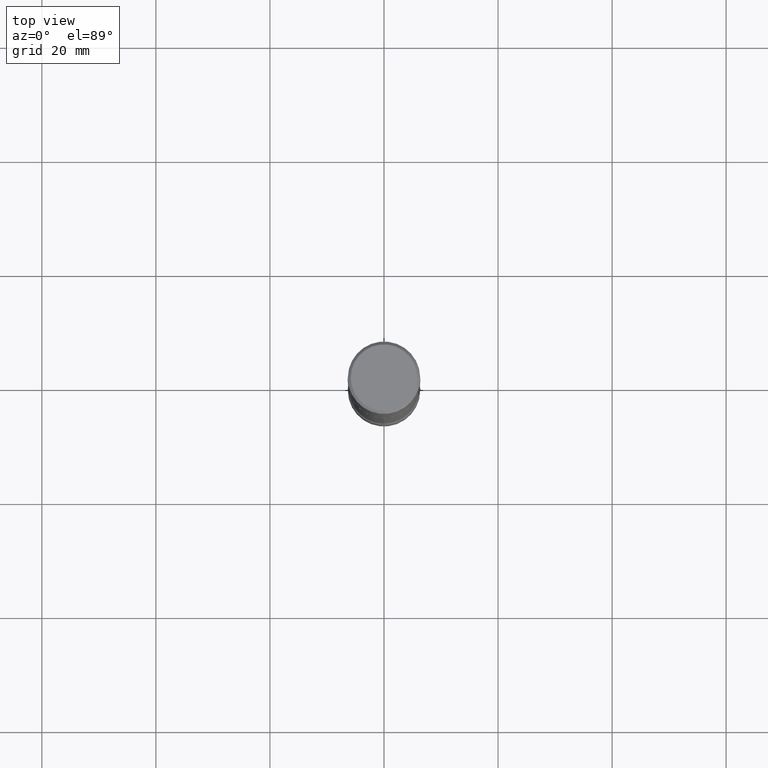
[diagram: clean part render]
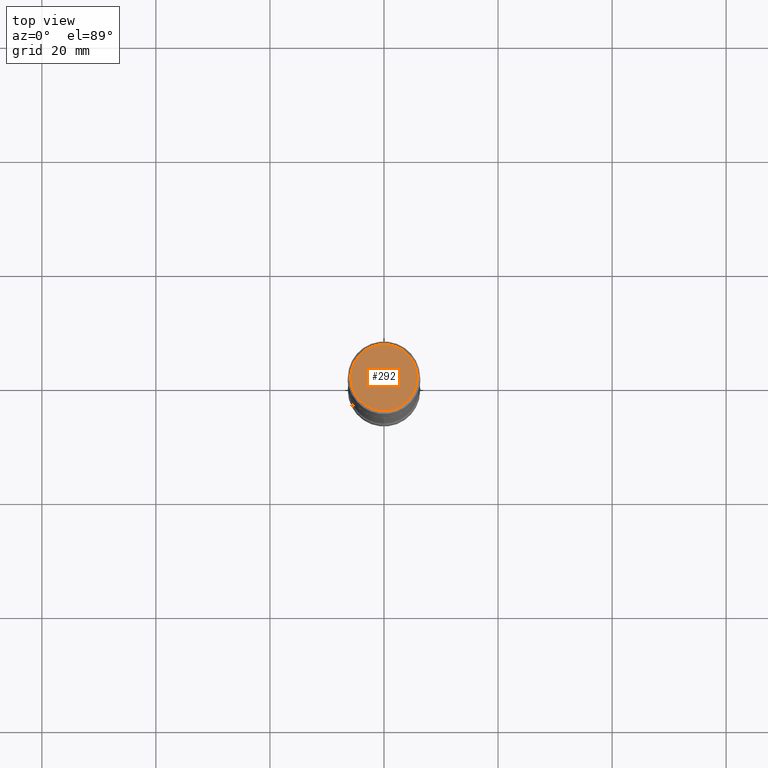
[diagram: same view with one face highlighted and labeled with its STEP entity id]
A machine part, top view. The second image highlights one B-rep face of the part: STEP entity #292.
In plain terms, the highlighted planar face has unit normal (0, -0, -1).
Its self-contained STEP definition (entity closure, byte-faithful):
#27 = DIRECTION ( 'NONE',  ( -2.445468806185136597E-29, 3.491481338843145583E-15, 1.000000000000000000 ) ) ;
#31 = AXIS2_PLACEMENT_3D ( 'NONE', #224, #403, #176 ) ;
#40 = CIRCLE ( 'NONE', #31, 0.2300000000000001210 ) ;
#57 = DIRECTION ( 'NONE',  ( 2.438088387897960049E-29, -3.491481338843145188E-15, -1.000000000000000000 ) ) ;
#85 = EDGE_CURVE ( 'NONE', #234, #133, #40, .T. ) ;
#133 = VERTEX_POINT ( 'NONE', #260 ) ;
#138 = AXIS2_PLACEMENT_3D ( 'NONE', #270, #27, #182 ) ;
#176 = DIRECTION ( 'NONE',  ( 1.000000000000000000, -6.982962677686265922E-15, 4.876225828469306079E-29 ) ) ;
#180 = EDGE_CURVE ( 'NONE', #133, #234, #431, .T. ) ;
#182 = DIRECTION ( 'NONE',  ( 1.000000000000000000, -6.982962677686265922E-15, 4.876225828469306079E-29 ) ) ;
#185 = ORIENTED_EDGE ( 'NONE', *, *, #85, .T. ) ;
#224 = CARTESIAN_POINT ( 'NONE',  ( -1.043851414335219820E-46, 1.490343170380447200E-32, 4.268512490100411279E-18 ) ) ;
#234 = VERTEX_POINT ( 'NONE', #333 ) ;
#240 = AXIS2_PLACEMENT_3D ( 'NONE', #440, #57, #443 ) ;
#260 = CARTESIAN_POINT ( 'NONE',  ( 0.2300000000000001210, -1.681434332853599997E-15, 4.268512490111905999E-18 ) ) ;
#263 = FACE_OUTER_BOUND ( 'NONE', #487, .T. ) ;
#270 = CARTESIAN_POINT ( 'NONE',  ( -1.043851414335219820E-46, 1.490343170380447200E-32, 4.268512490100411279E-18 ) ) ;
#292 = ADVANCED_FACE ( 'NONE', ( #263 ), #496, .F. ) ;
#319 = ORIENTED_EDGE ( 'NONE', *, *, #180, .T. ) ;
#333 = CARTESIAN_POINT ( 'NONE',  ( -0.2300000000000001210, 1.640996229256273111E-15, 4.268512490089056766E-18 ) ) ;
#403 = DIRECTION ( 'NONE',  ( -2.445468806185136597E-29, 3.491481338843145583E-15, 1.000000000000000000 ) ) ;
#431 = CIRCLE ( 'NONE', #138, 0.2300000000000001210 ) ;
#440 = CARTESIAN_POINT ( 'NONE',  ( 1.606081415867842053E-15, 0.2300000000000001210, -8.009064516888736730E-16 ) ) ;
#443 = DIRECTION ( 'NONE',  ( -1.000000000000000000, 6.982962677686265922E-15, -4.876176775795935793E-29 ) ) ;
#487 = EDGE_LOOP ( 'NONE', ( #185, #319 ) ) ;
#496 = PLANE ( 'NONE',  #240 ) ;